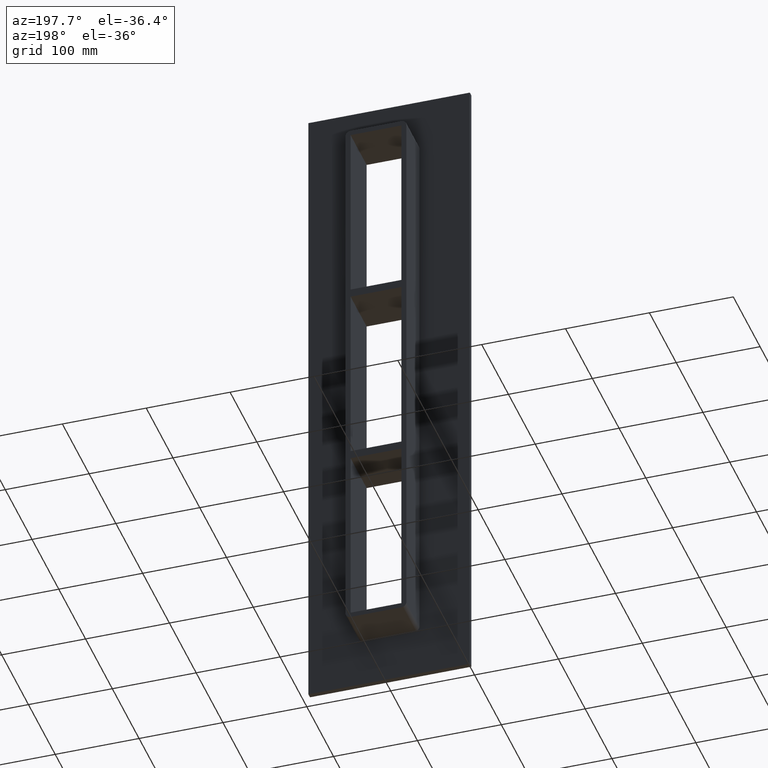
[diagram: clean part render]
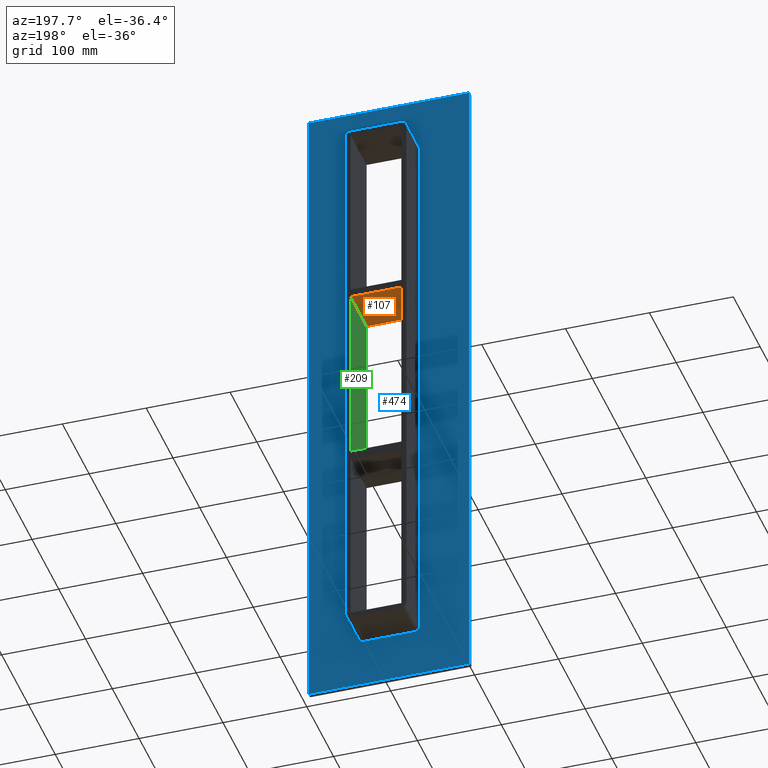
[diagram: same view with three faces highlighted in distinct colors, each labeled with its STEP entity id]
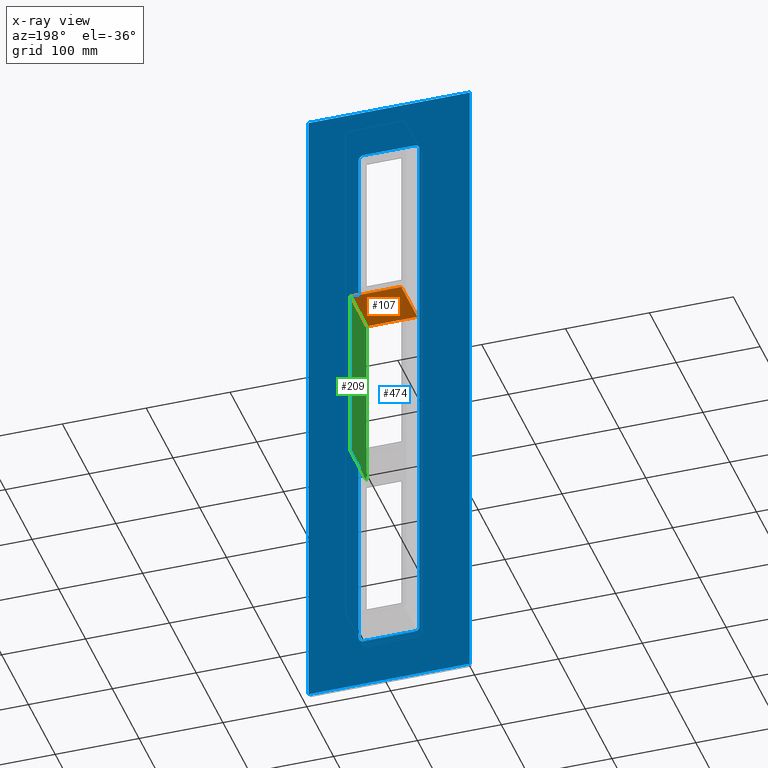
[diagram: x-ray of the same camera — body ghosted, the three highlighted faces saturated]
A machine part, auxiliary view with three faces highlighted in distinct colors.
The next image is the same camera in x-ray (body ghosted, the three faces saturated) — at least one of them is partly hidden behind the body in this view.
Their STEP definitions:

[orange] entity #107 — the highlighted planar face has unit normal (0, 0, -1).
#68=CARTESIAN_POINT('',(30.25,-5.0,109.00000000000003));
#69=DIRECTION('',(0.0,0.0,-1.0));
#70=DIRECTION('',(-1.0,0.0,0.0));
#71=AXIS2_PLACEMENT_3D('',#68,#69,#70);
#72=PLANE('',#71);
#73=CARTESIAN_POINT('',(30.25,-5.0,109.00000000000003));
#74=VERTEX_POINT('',#73);
#75=CARTESIAN_POINT('',(-30.250000000001798,-5.0,109.00000000000023));
#76=VERTEX_POINT('',#75);
#77=CARTESIAN_POINT('',(30.25,-5.0,109.00000000000003));
#78=DIRECTION('',(-1.0,0.0,0.0));
#79=VECTOR('',#78,60.500000000001805);
#80=LINE('',#77,#79);
#81=EDGE_CURVE('',#74,#76,#80,.T.);
#82=ORIENTED_EDGE('',*,*,#81,.T.);
#83=CARTESIAN_POINT('',(-30.250000000001798,55.0,109.00000000000023));
#84=VERTEX_POINT('',#83);
#85=CARTESIAN_POINT('',(-30.250000000000021,55.0,109.00000000000026));
#86=DIRECTION('',(0.0,-1.0,0.0));
#87=VECTOR('',#86,60.0);
#88=LINE('',#85,#87);
#89=EDGE_CURVE('',#84,#76,#88,.T.);
#90=ORIENTED_EDGE('',*,*,#89,.F.);
#91=CARTESIAN_POINT('',(30.250000000000004,55.0,109.00000000000003));
#92=VERTEX_POINT('',#91);
#93=CARTESIAN_POINT('',(30.25,55.0,109.00000000000003));
#94=DIRECTION('',(-1.0,0.0,0.0));
#95=VECTOR('',#94,60.500000000001805);
#96=LINE('',#93,#95);
#97=EDGE_CURVE('',#92,#84,#96,.T.);
#98=ORIENTED_EDGE('',*,*,#97,.F.);
#99=CARTESIAN_POINT('',(30.250000000000004,-5.0,109.00000000000004));
#100=DIRECTION('',(0.0,1.0,0.0));
#101=VECTOR('',#100,60.0);
#102=LINE('',#99,#101);
#103=EDGE_CURVE('',#74,#92,#102,.T.);
#104=ORIENTED_EDGE('',*,*,#103,.F.);
#105=EDGE_LOOP('',(#82,#90,#98,#104));
#106=FACE_OUTER_BOUND('',#105,.T.);
#107=ADVANCED_FACE('',(#106),#72,.T.);

[blue] entity #474 — the highlighted planar face has unit normal (0, 1, 0).
#365=CARTESIAN_POINT('',(0.0,6.000000000000001,0.0));
#366=DIRECTION('',(0.0,1.0,0.0));
#367=DIRECTION('',(0.0,0.0,1.0));
#368=AXIS2_PLACEMENT_3D('',#365,#366,#367);
#369=PLANE('',#368);
#370=CARTESIAN_POINT('',(96.25,6.000000000000001,-403.00000000000006));
#371=VERTEX_POINT('',#370);
#372=CARTESIAN_POINT('',(-96.25,6.000000000000001,-403.00000000000006));
#373=VERTEX_POINT('',#372);
#374=CARTESIAN_POINT('',(96.25,6.000000000000001,-403.00000000000006));
#375=DIRECTION('',(-1.0,0.0,0.0));
#376=VECTOR('',#375,192.5);
#377=LINE('',#374,#376);
#378=EDGE_CURVE('',#371,#373,#377,.T.);
#379=ORIENTED_EDGE('',*,*,#378,.T.);
#380=CARTESIAN_POINT('',(-96.25,6.000000000000001,403.00000000000006));
#381=VERTEX_POINT('',#380);
#382=CARTESIAN_POINT('',(-96.25,6.000000000000001,-403.00000000000006));
#383=DIRECTION('',(0.0,0.0,1.0));
#384=VECTOR('',#383,806.00000000000011);
#385=LINE('',#382,#384);
#386=EDGE_CURVE('',#373,#381,#385,.T.);
#387=ORIENTED_EDGE('',*,*,#386,.T.);
#388=CARTESIAN_POINT('',(96.25,6.000000000000001,403.00000000000006));
#389=VERTEX_POINT('',#388);
#390=CARTESIAN_POINT('',(-96.25,6.000000000000001,403.00000000000006));
#391=DIRECTION('',(1.0,0.0,0.0));
#392=VECTOR('',#391,192.5);
#393=LINE('',#390,#392);
#394=EDGE_CURVE('',#381,#389,#393,.T.);
#395=ORIENTED_EDGE('',*,*,#394,.T.);
#396=CARTESIAN_POINT('',(96.25,6.000000000000001,403.00000000000006));
#397=DIRECTION('',(0.0,0.0,-1.0));
#398=VECTOR('',#397,806.00000000000011);
#399=LINE('',#396,#398);
#400=EDGE_CURVE('',#389,#371,#399,.T.);
#401=ORIENTED_EDGE('',*,*,#400,.T.);
#402=EDGE_LOOP('',(#379,#387,#395,#401));
#403=FACE_OUTER_BOUND('',#402,.T.);
#404=CARTESIAN_POINT('',(30.249999999999986,6.000000000000001,343.00000000000006));
#405=VERTEX_POINT('',#404);
#406=CARTESIAN_POINT('',(36.25,6.000000000000001,336.99999999999994));
#407=VERTEX_POINT('',#406);
#408=CARTESIAN_POINT('',(30.249999999999986,6.000000000000001,336.99999999999994));
#409=DIRECTION('',(0.0,1.0,0.0));
#410=DIRECTION('',(0.0,0.0,1.0));
#411=AXIS2_PLACEMENT_3D('',#408,#409,#410);
#412=CIRCLE('',#411,6.000000000000014);
#413=EDGE_CURVE('',#405,#407,#412,.T.);
#414=ORIENTED_EDGE('',*,*,#413,.F.);
#415=CARTESIAN_POINT('',(-30.249999999999986,6.000000000000001,343.00000000000006));
#416=VERTEX_POINT('',#415);
#417=CARTESIAN_POINT('',(-30.249999999999986,6.000000000000001,343.00000000000006));
#418=DIRECTION('',(1.0,0.0,0.0));
#419=VECTOR('',#418,60.499999999999972);
#420=LINE('',#417,#419);
#421=EDGE_CURVE('',#416,#405,#420,.T.);
#422=ORIENTED_EDGE('',*,*,#421,.F.);
#423=CARTESIAN_POINT('',(-36.25,6.000000000000001,336.99999999999994));
#424=VERTEX_POINT('',#423);
#425=CARTESIAN_POINT('',(-30.249999999999986,6.000000000000001,336.99999999999994));
#426=DIRECTION('',(0.0,1.0,0.0));
#427=DIRECTION('',(-1.0,0.0,0.0));
#428=AXIS2_PLACEMENT_3D('',#425,#426,#427);
#429=CIRCLE('',#428,6.000000000000014);
#430=EDGE_CURVE('',#424,#416,#429,.T.);
#431=ORIENTED_EDGE('',*,*,#430,.F.);
#432=CARTESIAN_POINT('',(-36.25,6.000000000000001,-337.00000000000011));
#433=VERTEX_POINT('',#432);
#434=CARTESIAN_POINT('',(-36.25,6.000000000000001,-337.00000000000011));
#435=DIRECTION('',(0.0,0.0,1.0));
#436=VECTOR('',#435,674.0);
#437=LINE('',#434,#436);
#438=EDGE_CURVE('',#433,#424,#437,.T.);
#439=ORIENTED_EDGE('',*,*,#438,.F.);
#440=CARTESIAN_POINT('',(-30.249999999999986,6.000000000000001,-343.00000000000017));
#441=VERTEX_POINT('',#440);
#442=CARTESIAN_POINT('',(-30.249999999999986,6.000000000000001,-337.00000000000011));
#443=DIRECTION('',(0.0,1.0,0.0));
#444=DIRECTION('',(0.0,0.0,-1.0));
#445=AXIS2_PLACEMENT_3D('',#442,#443,#444);
#446=CIRCLE('',#445,6.000000000000014);
#447=EDGE_CURVE('',#441,#433,#446,.T.);
#448=ORIENTED_EDGE('',*,*,#447,.F.);
#449=CARTESIAN_POINT('',(30.249999999999986,6.000000000000001,-343.00000000000017));
#450=VERTEX_POINT('',#449);
#451=CARTESIAN_POINT('',(30.249999999999986,6.000000000000001,-343.00000000000017));
#452=DIRECTION('',(-1.0,0.0,0.0));
#453=VECTOR('',#452,60.499999999999972);
#454=LINE('',#451,#453);
#455=EDGE_CURVE('',#450,#441,#454,.T.);
#456=ORIENTED_EDGE('',*,*,#455,.F.);
#457=CARTESIAN_POINT('',(36.25,6.000000000000001,-337.00000000000011));
#458=VERTEX_POINT('',#457);
#459=CARTESIAN_POINT('',(30.249999999999986,6.000000000000001,-337.00000000000011));
#460=DIRECTION('',(0.0,1.0,0.0));
#461=DIRECTION('',(1.0,0.0,0.0));
#462=AXIS2_PLACEMENT_3D('',#459,#460,#461);
#463=CIRCLE('',#462,6.000000000000014);
#464=EDGE_CURVE('',#458,#450,#463,.T.);
#465=ORIENTED_EDGE('',*,*,#464,.F.);
#466=CARTESIAN_POINT('',(36.25,6.000000000000001,336.99999999999994));
#467=DIRECTION('',(0.0,0.0,-1.0));
#468=VECTOR('',#467,674.0);
#469=LINE('',#466,#468);
#470=EDGE_CURVE('',#407,#458,#469,.T.);
#471=ORIENTED_EDGE('',*,*,#470,.F.);
#472=EDGE_LOOP('',(#414,#422,#431,#439,#448,#456,#465,#471));
#473=FACE_BOUND('',#472,.T.);
#474=ADVANCED_FACE('',(#403,#473),#369,.T.);

[green] entity #209 — the highlighted planar face has unit normal (1, 0, 0).
#73=CARTESIAN_POINT('',(30.25,-5.0,109.00000000000003));
#74=VERTEX_POINT('',#73);
#91=CARTESIAN_POINT('',(30.250000000000004,55.0,109.00000000000003));
#92=VERTEX_POINT('',#91);
#99=CARTESIAN_POINT('',(30.250000000000004,-5.0,109.00000000000004));
#100=DIRECTION('',(0.0,1.0,0.0));
#101=VECTOR('',#100,60.0);
#102=LINE('',#99,#101);
#103=EDGE_CURVE('',#74,#92,#102,.T.);
#179=CARTESIAN_POINT('',(30.250000000000004,0.0,337.0));
#180=DIRECTION('',(1.0,0.0,0.0));
#181=DIRECTION('',(0.0,0.0,-1.0));
#182=AXIS2_PLACEMENT_3D('',#179,#180,#181);
#183=PLANE('',#182);
#184=ORIENTED_EDGE('',*,*,#103,.T.);
#185=CARTESIAN_POINT('',(30.25000000000059,55.0,-108.99999999999977));
#186=VERTEX_POINT('',#185);
#187=CARTESIAN_POINT('',(30.250000000000004,55.0,-108.9999999999998));
#188=DIRECTION('',(0.0,0.0,1.0));
#189=VECTOR('',#188,217.99999999999983);
#190=LINE('',#187,#189);
#191=EDGE_CURVE('',#186,#92,#190,.T.);
#192=ORIENTED_EDGE('',*,*,#191,.F.);
#193=CARTESIAN_POINT('',(30.250000000000586,-5.0,-108.99999999999977));
#194=VERTEX_POINT('',#193);
#195=CARTESIAN_POINT('',(30.250000000000004,55.0,-108.99999999999977));
#196=DIRECTION('',(0.0,-1.0,0.0));
#197=VECTOR('',#196,60.0);
#198=LINE('',#195,#197);
#199=EDGE_CURVE('',#186,#194,#198,.T.);
#200=ORIENTED_EDGE('',*,*,#199,.T.);
#201=CARTESIAN_POINT('',(30.250000000000004,-5.0,109.00000000000001));
#202=DIRECTION('',(0.0,0.0,-1.0));
#203=VECTOR('',#202,217.99999999999983);
#204=LINE('',#201,#203);
#205=EDGE_CURVE('',#74,#194,#204,.T.);
#206=ORIENTED_EDGE('',*,*,#205,.F.);
#207=EDGE_LOOP('',(#184,#192,#200,#206));
#208=FACE_OUTER_BOUND('',#207,.T.);
#209=ADVANCED_FACE('',(#208),#183,.F.);